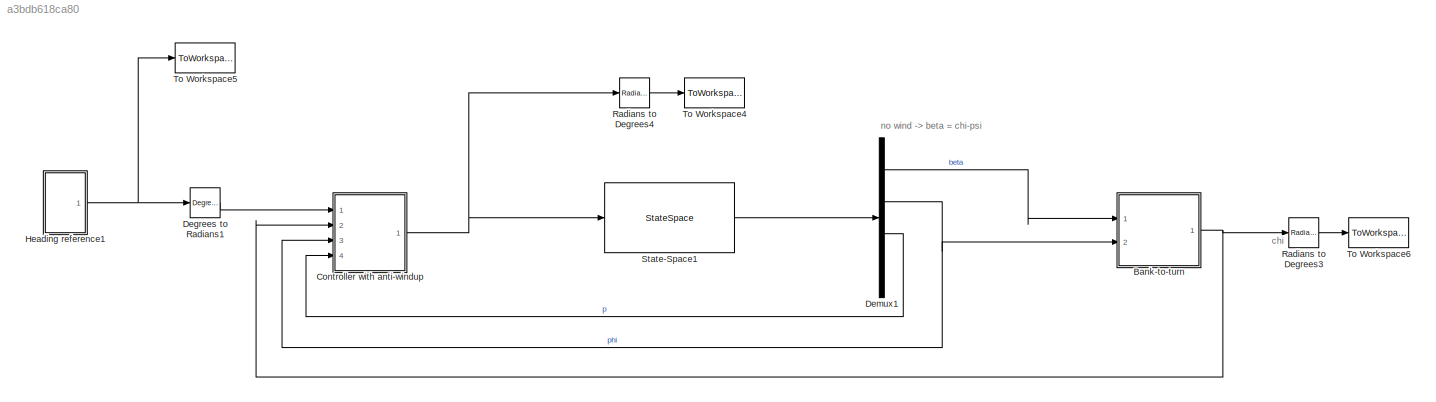
MODEL slx_a3bdb618ca80
KIND model
CONFIG AbsTol = auto
CONFIG EnableMultiTasking = off
CONFIG FixedStep = auto
CONFIG MaxStep = auto
CONFIG MinStep = auto
CONFIG RelTol = 1e-3
CONFIG SampleTimeConstraint = Unconstrained
CONFIG Solver = VariableStepAuto
CONFIG SolverName = VariableStepAuto
CONFIG StartTime = 0.0
CONFIG StopTime = 10.0
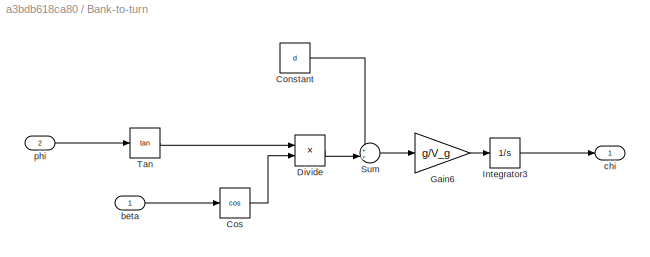
BLOCK [SubSystem] Bank-to-turn
  Ports = [2, 1]
  RequestExecContextInheritance = off
BLOCK [Constant] Bank-to-turn/Constant
  Value = d
BLOCK [Trigonometry] Bank-to-turn/Cos
  Operator = cos
  Ports = [1, 1]
BLOCK [Product] Bank-to-turn/Divide
  Inputs = **
  Ports = [2, 1]
BLOCK [Gain] Bank-to-turn/Gain6
  Gain = g/V_g
BLOCK [Integrator] Bank-to-turn/Integrator3
  Ports = [1, 1]
BLOCK [Sum] Bank-to-turn/Sum
  Inputs = ++|
  Ports = [2, 1]
BLOCK [Trigonometry] Bank-to-turn/Tan
  Operator = tan
  Ports = [1, 1]
BLOCK [Inport] Bank-to-turn/beta
BLOCK [Outport] Bank-to-turn/chi
BLOCK [Inport] Bank-to-turn/phi
  Port = 2
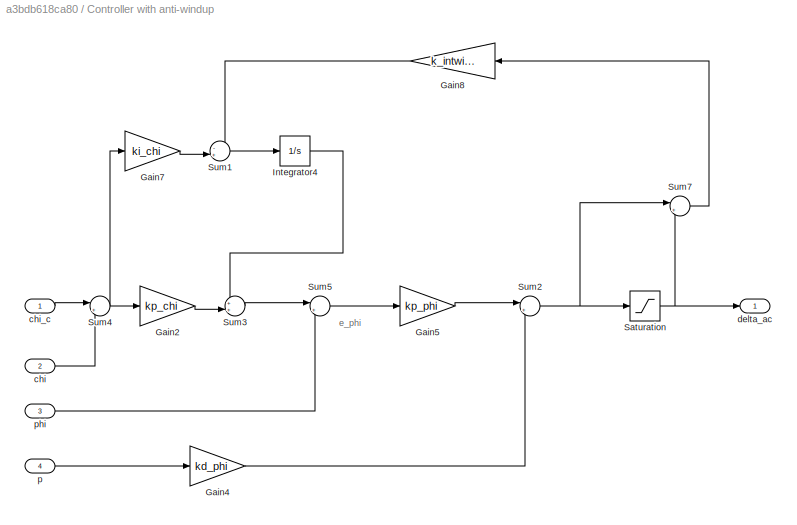
BLOCK [SubSystem] Controller with anti-windup
  Ports = [4, 1]
  RequestExecContextInheritance = off
BLOCK [Gain] Controller with anti-windup/Gain2
  Gain = kp_chi
BLOCK [Gain] Controller with anti-windup/Gain4
  Gain = kd_phi
BLOCK [Gain] Controller with anti-windup/Gain5
  Gain = kp_phi
BLOCK [Gain] Controller with anti-windup/Gain7
  Gain = ki_chi
BLOCK [Gain] Controller with anti-windup/Gain8
  Gain = k_intwind
  NameLocation = top
BLOCK [Integrator] Controller with anti-windup/Integrator4
  Ports = [1, 1]
BLOCK [Saturate] Controller with anti-windup/Saturation
  LowerLimit = -pi/6
  UpperLimit = pi/6
BLOCK [Sum] Controller with anti-windup/Sum1
  Inputs = -+|
  Ports = [2, 1]
BLOCK [Sum] Controller with anti-windup/Sum2
  Inputs = |+-
  Ports = [2, 1]
BLOCK [Sum] Controller with anti-windup/Sum3
  Inputs = ++|
  Ports = [2, 1]
BLOCK [Sum] Controller with anti-windup/Sum4
  Inputs = |+-
  Ports = [2, 1]
BLOCK [Sum] Controller with anti-windup/Sum5
  Inputs = |+-
  Ports = [2, 1]
BLOCK [Sum] Controller with anti-windup/Sum7
  Inputs = |+-
  Ports = [2, 1]
BLOCK [Inport] Controller with anti-windup/chi
  Port = 2
BLOCK [Inport] Controller with anti-windup/chi_c
BLOCK [Outport] Controller with anti-windup/delta_ac
BLOCK [Inport] Controller with anti-windup/p
  Port = 4
BLOCK [Inport] Controller with anti-windup/phi
  Port = 3
BLOCK [Reference] Degrees to Radians1  REF=simulink_extras/Transformations/Degrees to
Radians
  Ports = [1, 1]
  SourceBlock = simulink_extras/Transformations/Degrees to\nRadians
  SourceProductBaseCode = SL
  SourceType = DegreesToRadians
BLOCK [Demux] Demux1
  Ports = [1, 4]
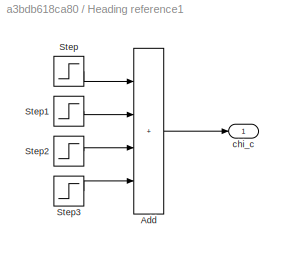
BLOCK [SubSystem] Heading reference1
  Ports = [0, 1]
  RequestExecContextInheritance = off
BLOCK [Sum] Heading reference1/Add
  IconShape = rectangular
  Inputs = ++++
  Ports = [4, 1]
BLOCK [Step] Heading reference1/Step
  After = 7.5
  SampleTime = 0
  Time = 100
BLOCK [Step] Heading reference1/Step1
  After = 7.5
  SampleTime = 0
  Time = 200
BLOCK [Step] Heading reference1/Step2
  After = -7.5
  SampleTime = 0
  Time = 300
BLOCK [Step] Heading reference1/Step3
  After = 0
  SampleTime = 0
  Time = 400
BLOCK [Outport] Heading reference1/chi_c
BLOCK [Reference] Radians to Degrees3  REF=simulink_extras/Transformations/Radians
to Degrees
  Ports = [1, 1]
  SourceBlock = simulink_extras/Transformations/Radians\nto Degrees
  SourceProductBaseCode = SL
  SourceType = RadiansToDegrees
BLOCK [Reference] Radians to Degrees4  REF=simulink_extras/Transformations/Radians
to Degrees
  Ports = [1, 1]
  SourceBlock = simulink_extras/Transformations/Radians\nto Degrees
  SourceProductBaseCode = SL
  SourceType = RadiansToDegrees
BLOCK [StateSpace] State-Space1
  A = A
  B = B
  C = C
  D = D
  InitialCondition = 0
  Ports = [1, 1]
BLOCK [ToWorkspace] To Workspace4
  FixptAsFi = on
  MaxDataPoints = inf
  Ports = [1]
  SampleTime = -1
  SaveFormat = Timeseries
  VariableName = delta_ac
BLOCK [ToWorkspace] To Workspace5
  FixptAsFi = on
  MaxDataPoints = inf
  Ports = [1]
  SampleTime = -1
  SaveFormat = Timeseries
  VariableName = chi_c
BLOCK [ToWorkspace] To Workspace6
  FixptAsFi = on
  MaxDataPoints = inf
  Ports = [1]
  SampleTime = -1
  SaveFormat = Timeseries
  VariableName = chi
ANNOTATION (root): chi
ANNOTATION (root): no wind -> beta = chi-psi
ANNOTATION Controller with anti-windup: e_phi
LINE Bank-to-turn/Constant:1 -> Bank-to-turn/Sum:1
LINE Bank-to-turn/Cos:1 -> Bank-to-turn/Divide:2
LINE Bank-to-turn/Divide:1 -> Bank-to-turn/Sum:2
LINE Bank-to-turn/Gain6:1 -> Bank-to-turn/Integrator3:1
LINE Bank-to-turn/Integrator3:1 -> Bank-to-turn/chi:1
LINE Bank-to-turn/Sum:1 -> Bank-to-turn/Gain6:1
LINE Bank-to-turn/Tan:1 -> Bank-to-turn/Divide:1
LINE Bank-to-turn/beta:1 -> Bank-to-turn/Cos:1
LINE Bank-to-turn/phi:1 -> Bank-to-turn/Tan:1
NET Bank-to-turn:1 -> Controller with anti-windup:2, Radians to Degrees3:1
LINE Controller with anti-windup/Gain2:1 -> Controller with anti-windup/Sum3:2
LINE Controller with anti-windup/Gain4:1 -> Controller with anti-windup/Sum2:2
LINE Controller with anti-windup/Gain5:1 -> Controller with anti-windup/Sum2:1
LINE Controller with anti-windup/Gain7:1 -> Controller with anti-windup/Sum1:2
LINE Controller with anti-windup/Gain8:1 -> Controller with anti-windup/Sum1:1
LINE Controller with anti-windup/Integrator4:1 -> Controller with anti-windup/Sum3:1
NET Controller with anti-windup/Saturation:1 -> Controller with anti-windup/Sum7:2, Controller with anti-windup/delta_ac:1
LINE Controller with anti-windup/Sum1:1 -> Controller with anti-windup/Integrator4:1
NET Controller with anti-windup/Sum2:1 -> Controller with anti-windup/Saturation:1, Controller with anti-windup/Sum7:1
LINE Controller with anti-windup/Sum3:1 -> Controller with anti-windup/Sum5:1
NET Controller with anti-windup/Sum4:1 -> Controller with anti-windup/Gain2:1, Controller with anti-windup/Gain7:1
LINE Controller with anti-windup/Sum5:1 -> Controller with anti-windup/Gain5:1
LINE Controller with anti-windup/Sum7:1 -> Controller with anti-windup/Gain8:1
LINE Controller with anti-windup/chi:1 -> Controller with anti-windup/Sum4:2
LINE Controller with anti-windup/chi_c:1 -> Controller with anti-windup/Sum4:1
LINE Controller with anti-windup/p:1 -> Controller with anti-windup/Gain4:1
LINE Controller with anti-windup/phi:1 -> Controller with anti-windup/Sum5:2
NET Controller with anti-windup:1 -> Radians to Degrees4:1, State-Space1:1
LINE Degrees to Radians1:1 -> Controller with anti-windup:1
LINE Demux1:1 -> Bank-to-turn:1
NET Demux1:2 -> Bank-to-turn:2, Controller with anti-windup:3
LINE Demux1:3 -> Controller with anti-windup:4
LINE Heading reference1/Add:1 -> Heading reference1/chi_c:1
LINE Heading reference1/Step1:1 -> Heading reference1/Add:2
LINE Heading reference1/Step2:1 -> Heading reference1/Add:3
LINE Heading reference1/Step3:1 -> Heading reference1/Add:4
LINE Heading reference1/Step:1 -> Heading reference1/Add:1
NET Heading reference1:1 -> Degrees to Radians1:1, To Workspace5:1
LINE Radians to Degrees3:1 -> To Workspace6:1
LINE Radians to Degrees4:1 -> To Workspace4:1
LINE State-Space1:1 -> Demux1:1
note: NET lines group one-source signal fan-out (src -> all destinations, sorted); 1:1 wires keep LINE
